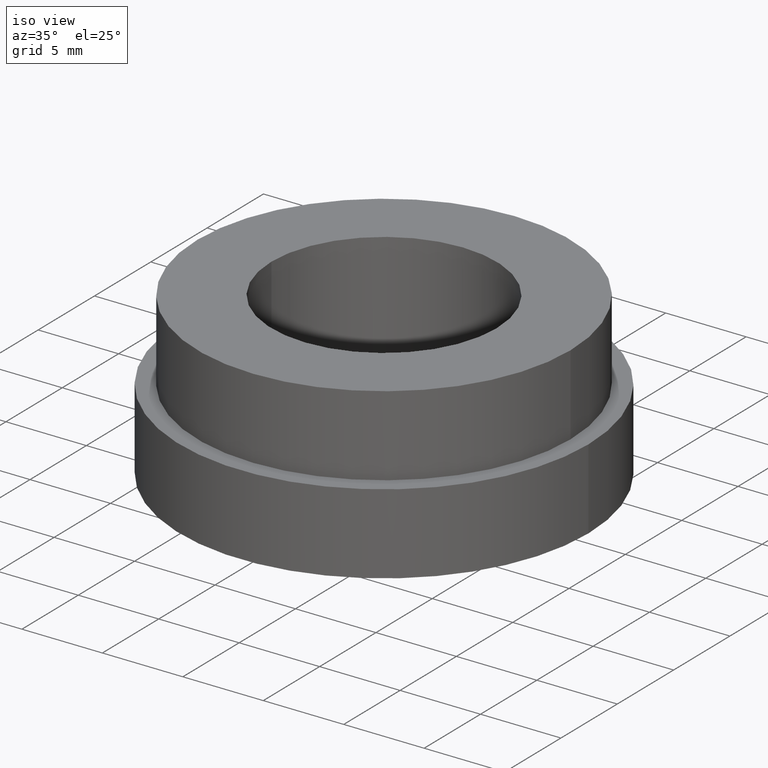
[diagram: clean part render]
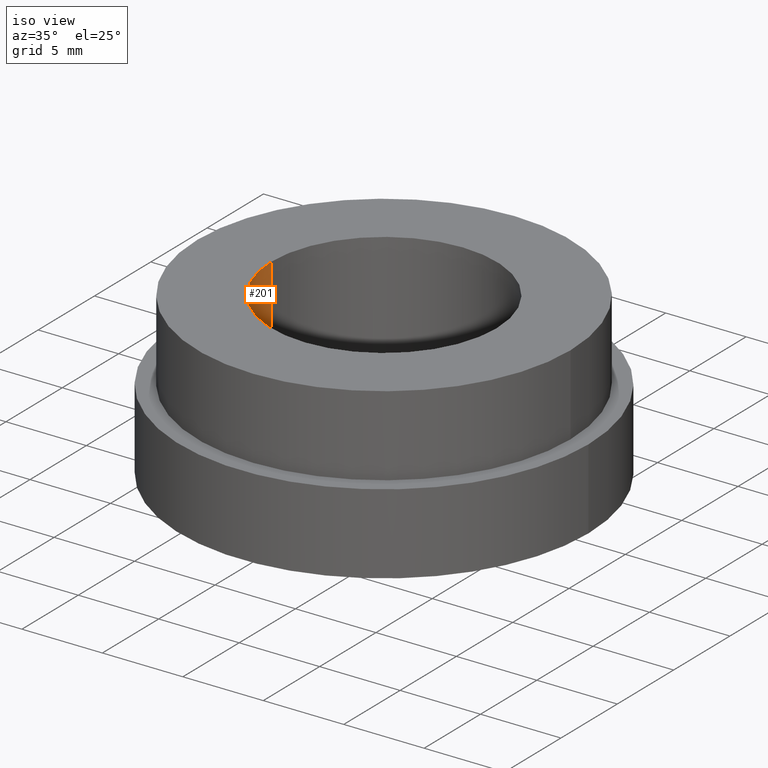
[diagram: same view with one face highlighted and labeled with its STEP entity id]
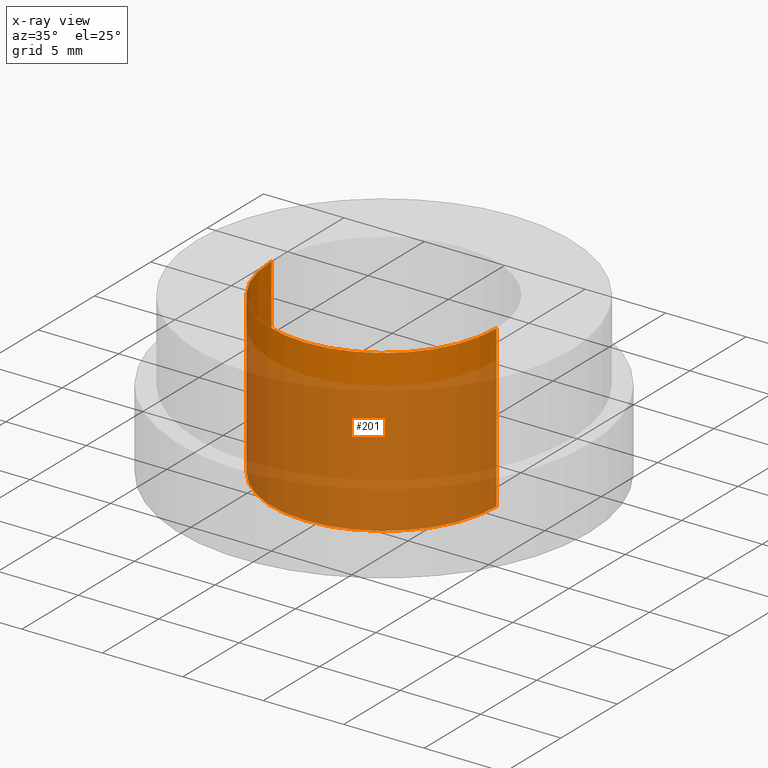
[diagram: x-ray of the same camera — body ghosted, the highlighted face saturated]
A machine part, iso view. The second image highlights one B-rep face of the part: STEP entity #201.
The next image is the same camera in x-ray: the body ghosted, the highlighted face saturated — about 80% of this face is hidden behind the body in this view.
In plain terms, the highlighted cylindrical surface (partial cylindrical patch) has radius 7 mm, axis along (-0, -0, -1).
Its self-contained STEP definition (entity closure, byte-faithful):
#12 = ORIENTED_EDGE ( 'NONE', *, *, #294, .F. ) ;
#15 = DIRECTION ( 'NONE',  ( -0.0000000000000000000, -0.0000000000000000000, -1.000000000000000000 ) ) ;
#26 = DIRECTION ( 'NONE',  ( -0.0000000000000000000, -0.0000000000000000000, -1.000000000000000000 ) ) ;
#35 = CARTESIAN_POINT ( 'NONE',  ( -7.000000000000001800, 0.0000000000000000000, 0.0000000000000000000 ) ) ;
#41 = DIRECTION ( 'NONE',  ( -0.0000000000000000000, -0.0000000000000000000, -1.000000000000000000 ) ) ;
#47 = LINE ( 'NONE', #84, #170 ) ;
#49 = AXIS2_PLACEMENT_3D ( 'NONE', #273, #308, #278 ) ;
#51 = CARTESIAN_POINT ( 'NONE',  ( 7.000000000000002700, 8.572527594031475200E-016, -19.14057971014493000 ) ) ;
#58 = ORIENTED_EDGE ( 'NONE', *, *, #78, .F. ) ;
#59 = CARTESIAN_POINT ( 'NONE',  ( 0.0000000000000000000, 0.0000000000000000000, -19.14057971014493000 ) ) ;
#68 = CYLINDRICAL_SURFACE ( 'NONE', #109, 7.000000000000002700 ) ;
#78 = EDGE_CURVE ( 'NONE', #176, #197, #290, .T. ) ;
#84 = CARTESIAN_POINT ( 'NONE',  ( -7.000000000000002700, 0.0000000000000000000, -19.14057971014493000 ) ) ;
#98 = EDGE_CURVE ( 'NONE', #285, #262, #230, .T. ) ;
#105 = VECTOR ( 'NONE', #26, 1000.000000000000000 ) ;
#109 = AXIS2_PLACEMENT_3D ( 'NONE', #59, #15, #223 ) ;
#113 = CARTESIAN_POINT ( 'NONE',  ( -7.000000000000002700, 0.0000000000000000000, -9.999999999999998200 ) ) ;
#124 = AXIS2_PLACEMENT_3D ( 'NONE', #234, #41, #207 ) ;
#126 = ORIENTED_EDGE ( 'NONE', *, *, #347, .T. ) ;
#132 = ORIENTED_EDGE ( 'NONE', *, *, #98, .T. ) ;
#168 = DIRECTION ( 'NONE',  ( -0.0000000000000000000, -0.0000000000000000000, -1.000000000000000000 ) ) ;
#170 = VECTOR ( 'NONE', #168, 1000.000000000000000 ) ;
#176 = VERTEX_POINT ( 'NONE', #250 ) ;
#197 = VERTEX_POINT ( 'NONE', #35 ) ;
#201 = ADVANCED_FACE ( 'NONE', ( #284 ), #68, .F. ) ;
#207 = DIRECTION ( 'NONE',  ( -1.000000000000000000, 0.0000000000000000000, 0.0000000000000000000 ) ) ;
#223 = DIRECTION ( 'NONE',  ( -1.000000000000000000, 0.0000000000000000000, 0.0000000000000000000 ) ) ;
#230 = CIRCLE ( 'NONE', #49, 7.000000000000002700 ) ;
#234 = CARTESIAN_POINT ( 'NONE',  ( 0.0000000000000000000, 0.0000000000000000000, 0.0000000000000000000 ) ) ;
#250 = CARTESIAN_POINT ( 'NONE',  ( 7.000000000000001800, 8.572527594031474200E-016, 0.0000000000000000000 ) ) ;
#262 = VERTEX_POINT ( 'NONE', #113 ) ;
#268 = CARTESIAN_POINT ( 'NONE',  ( 7.000000000000002700, 8.572527594031475200E-016, -9.999999999999998200 ) ) ;
#273 = CARTESIAN_POINT ( 'NONE',  ( 0.0000000000000000000, 0.0000000000000000000, -9.999999999999998200 ) ) ;
#278 = DIRECTION ( 'NONE',  ( -1.000000000000000000, 0.0000000000000000000, 0.0000000000000000000 ) ) ;
#284 = FACE_OUTER_BOUND ( 'NONE', #297, .T. ) ;
#285 = VERTEX_POINT ( 'NONE', #268 ) ;
#290 = CIRCLE ( 'NONE', #124, 7.000000000000001800 ) ;
#294 = EDGE_CURVE ( 'NONE', #197, #262, #47, .T. ) ;
#297 = EDGE_LOOP ( 'NONE', ( #58, #126, #132, #12 ) ) ;
#308 = DIRECTION ( 'NONE',  ( -0.0000000000000000000, -0.0000000000000000000, -1.000000000000000000 ) ) ;
#335 = LINE ( 'NONE', #51, #105 ) ;
#347 = EDGE_CURVE ( 'NONE', #176, #285, #335, .T. ) ;